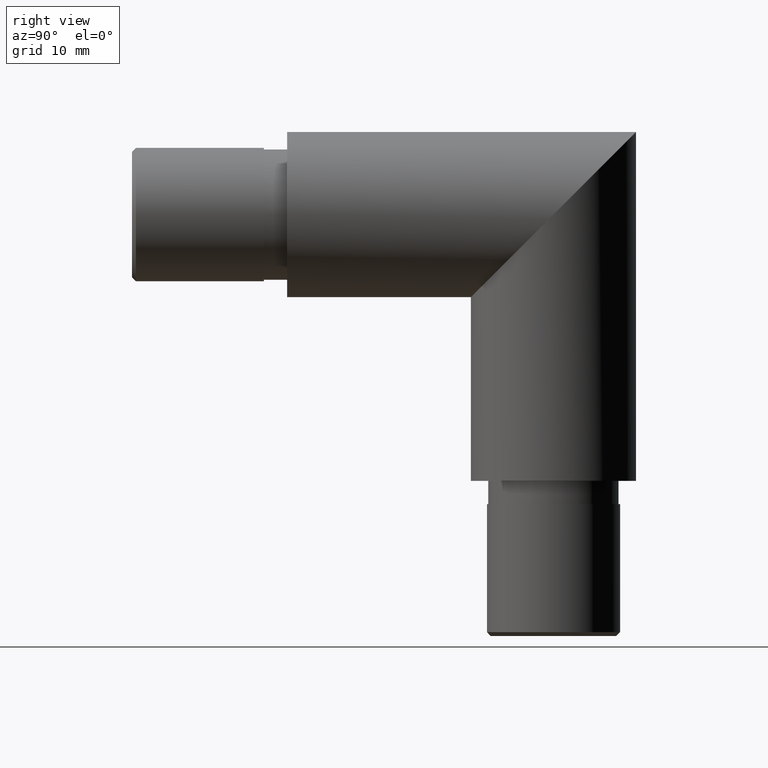
[diagram: clean part render]
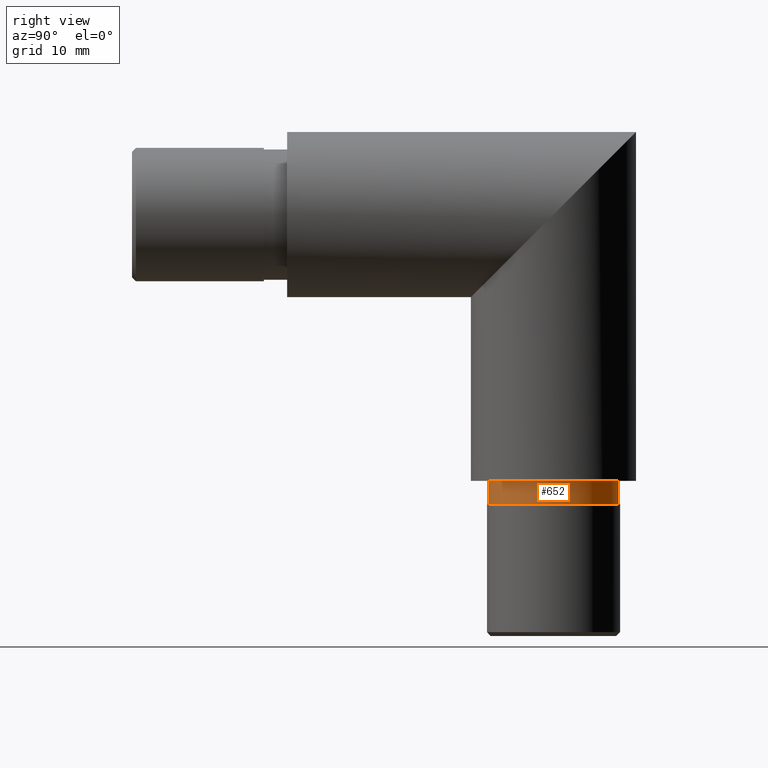
[diagram: same view with one face highlighted and labeled with its STEP entity id]
A machine part, right view. The second image highlights one B-rep face of the part: STEP entity #652.
In plain terms, the highlighted cylindrical surface (bore or boss wall) has radius 8.4 mm, axis along (-0, 0, 1).
Its self-contained STEP definition (entity closure, byte-faithful):
#652 = ADVANCED_FACE ( 'NONE', ( #3033, #6222 ), #10841, .T. ) ;
#1845 = DIRECTION ( 'NONE',  ( 0.0000000000000000000, -3.441691376337984500E-015, -1.000000000000000000 ) ) ;
#2153 = AXIS2_PLACEMENT_3D ( 'NONE', #8351, #1845, #7278 ) ;
#2620 = EDGE_CURVE ( 'NONE', #4543, #4543, #8209, .T. ) ;
#2964 = ORIENTED_EDGE ( 'NONE', *, *, #2620, .F. ) ;
#3001 = AXIS2_PLACEMENT_3D ( 'NONE', #4299, #11699, #11624 ) ;
#3033 = FACE_OUTER_BOUND ( 'NONE', #4101, .T. ) ;
#3229 = DIRECTION ( 'NONE',  ( -0.0000000000000000000, 3.441691376337984500E-015, 1.000000000000000000 ) ) ;
#3274 = CARTESIAN_POINT ( 'NONE',  ( 0.0000000000000000000, 34.34999999999986600, -37.35000000000000100 ) ) ;
#3573 = CARTESIAN_POINT ( 'NONE',  ( 0.0000000000000000000, 42.74999999999986500, -37.35000000000003000 ) ) ;
#4101 = EDGE_LOOP ( 'NONE', ( #2964 ) ) ;
#4205 = DIRECTION ( 'NONE',  ( 0.0000000000000000000, -1.000000000000000000, 3.304235192336775900E-015 ) ) ;
#4299 = CARTESIAN_POINT ( 'NONE',  ( 0.0000000000000000000, 34.34999999999987400, -34.35000000000000100 ) ) ;
#4349 = EDGE_LOOP ( 'NONE', ( #10120 ) ) ;
#4543 = VERTEX_POINT ( 'NONE', #3573 ) ;
#6222 = FACE_OUTER_BOUND ( 'NONE', #4349, .T. ) ;
#7278 = DIRECTION ( 'NONE',  ( 0.0000000000000000000, 1.000000000000000000, -3.304235192336775900E-015 ) ) ;
#8209 = CIRCLE ( 'NONE', #2153, 8.399999999999998600 ) ;
#8351 = CARTESIAN_POINT ( 'NONE',  ( 0.0000000000000000000, 34.34999999999986600, -37.35000000000000100 ) ) ;
#8997 = CIRCLE ( 'NONE', #3001, 8.399999999999998600 ) ;
#9042 = CARTESIAN_POINT ( 'NONE',  ( 0.0000000000000000000, 42.74999999999987200, -34.35000000000003000 ) ) ;
#9265 = EDGE_CURVE ( 'NONE', #11483, #11483, #8997, .T. ) ;
#10120 = ORIENTED_EDGE ( 'NONE', *, *, #9265, .T. ) ;
#10345 = AXIS2_PLACEMENT_3D ( 'NONE', #3274, #3229, #4205 ) ;
#10841 = CYLINDRICAL_SURFACE ( 'NONE', #10345, 8.399999999999998600 ) ;
#11483 = VERTEX_POINT ( 'NONE', #9042 ) ;
#11624 = DIRECTION ( 'NONE',  ( 0.0000000000000000000, 1.000000000000000000, -3.304235192336775900E-015 ) ) ;
#11699 = DIRECTION ( 'NONE',  ( 0.0000000000000000000, -3.441691376337984500E-015, -1.000000000000000000 ) ) ;